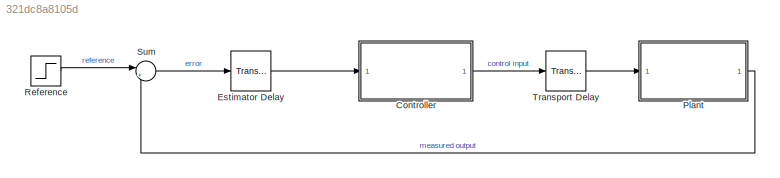
MODEL slx_321dc8a8105d
KIND model
CONFIG AbsTol = auto
CONFIG EnableMultiTasking = on
CONFIG FixedStep = auto
CONFIG MaxStep = 0.01
CONFIG MinStep = auto
CONFIG RelTol = 1e-4
CONFIG SampleTimeConstraint = Unconstrained
CONFIG Solver = VariableStepAuto
CONFIG SolverName = VariableStepAuto
CONFIG StartTime = 0.0
CONFIG StopTime = 25
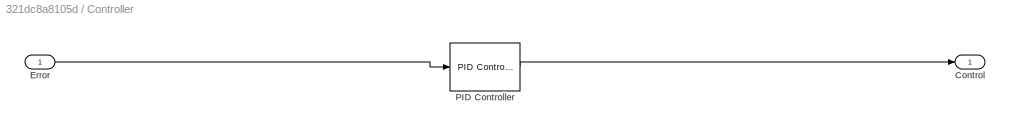
BLOCK [SubSystem] Controller
  Ports = [1, 1]
  RequestExecContextInheritance = off
  Variant = off
BLOCK [Outport] Controller/Control
  IconDisplay = Port number
BLOCK [Inport] Controller/Error
  IconDisplay = Port number
BLOCK [Reference] Controller/PID Controller  REF=simulink/Continuous/PID Controller
  Ports = [1, 1]
  SourceBlock = simulink/Continuous/PID Controller
  SourceProductBaseCode = SL
  SourceProductName = Simulink
  SourceType = PID 1dof
BLOCK [TransportDelay] Estimator Delay
  DelayTime = 0.05
  Ports = [1, 1]
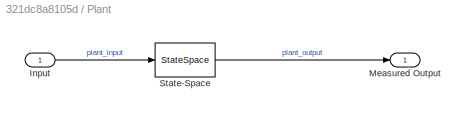
BLOCK [SubSystem] Plant
  Ports = [1, 1]
  RequestExecContextInheritance = off
  Variant = off
BLOCK [Inport] Plant/Input
  IconDisplay = Port number
BLOCK [Outport] Plant/Measured Output
  IconDisplay = Port number
BLOCK [StateSpace] Plant/State-Space
  A = A
  B = bSISO
  C = cSISO
  D = dSISO
  InitialCondition = 0
  Ports = [1, 1]
BLOCK [Step] Reference
  After = 0.2
  SampleTime = 0
BLOCK [Sum] Sum
  IconShape = round
  InputSameDT = off
  Inputs = |+-
  OutDataTypeStr = Inherit: Inherit via internal rule
  Ports = [2, 1]
  SaturateOnIntegerOverflow = off
BLOCK [TransportDelay] Transport Delay
  DelayTime = 0.05
  Ports = [1, 1]
LINE Controller/Error:1 -> Controller/PID Controller:1
LINE Controller/PID Controller:1 -> Controller/Control:1
LINE Controller:1 -> Transport Delay:1
LINE Estimator Delay:1 -> Controller:1
LINE Plant/Input:1 -> Plant/State-Space:1
LINE Plant/State-Space:1 -> Plant/Measured Output:1
LINE Plant:1 -> Sum:2
LINE Reference:1 -> Sum:1
LINE Sum:1 -> Estimator Delay:1
LINE Transport Delay:1 -> Plant:1
